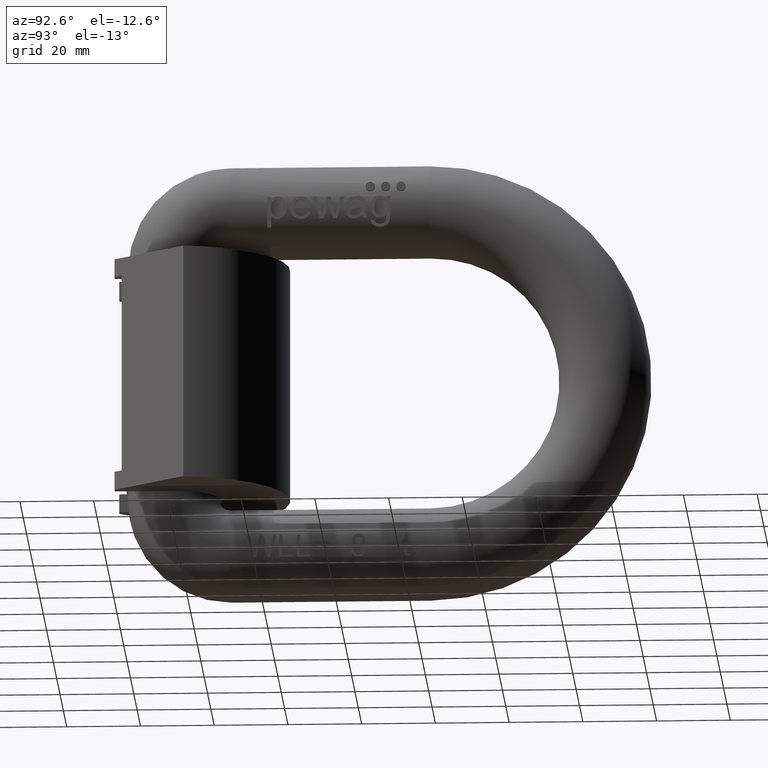
[diagram: clean part render]
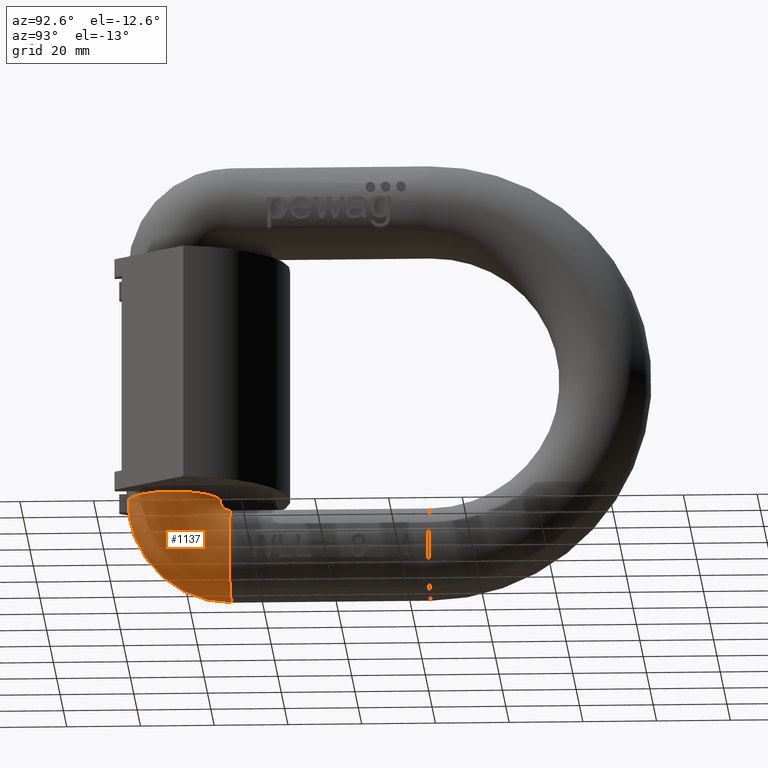
[diagram: same view with one face highlighted and labeled with its STEP entity id]
A machine part, auxiliary view. The second image highlights one B-rep face of the part: STEP entity #1137.
In plain terms, the highlighted toroidal blend (fillet) surface has major radius 15.5 mm and minor (blend) radius 12.5 mm.
Its self-contained STEP definition (entity closure, byte-faithful):
#181=TOROIDAL_SURFACE('',#6865,15.5,12.5);
#873=FACE_BOUND('',#1904,.T.);
#874=FACE_BOUND('',#1905,.T.);
#1137=ADVANCED_FACE('',(#873,#874),#181,.T.);
#1904=EDGE_LOOP('',(#2680));
#1905=EDGE_LOOP('',(#2681));
#2297=CIRCLE('',#6836,12.5);
#2313=CIRCLE('',#6863,12.5);
#2680=ORIENTED_EDGE('',*,*,#5163,.F.);
#2681=ORIENTED_EDGE('',*,*,#5100,.T.);
#4446=VERTEX_POINT('',#10180);
#4509=VERTEX_POINT('',#10536);
#5100=EDGE_CURVE('',#4446,#4446,#2297,.T.);
#5163=EDGE_CURVE('',#4509,#4509,#2313,.T.);
#6836=AXIS2_PLACEMENT_3D('',#10179,#7304,#7305);
#6863=AXIS2_PLACEMENT_3D('',#10535,#7377,#7378);
#6865=AXIS2_PLACEMENT_3D('',#10538,#7381,#7382);
#7304=DIRECTION('',(0.,-1.,2.63163976207445E-16));
#7305=DIRECTION('',(0.,-2.77555756156289E-16,-1.));
#7377=DIRECTION('',(0.,-2.90669283270036E-15,1.));
#7378=DIRECTION('',(0.,-1.,-2.77555756156289E-15));
#7381=DIRECTION('',(-1.,0.,0.));
#7382=DIRECTION('',(0.,0.,1.));
#10179=CARTESIAN_POINT('',(0.,31.,-47.5));
#10180=CARTESIAN_POINT('',(0.,31.,-60.));
#10535=CARTESIAN_POINT('',(0.,15.5,-32.));
#10536=CARTESIAN_POINT('',(0.,3.00000000000001,-32.0000000000001));
#10538=CARTESIAN_POINT('',(0.,31.,-32.));